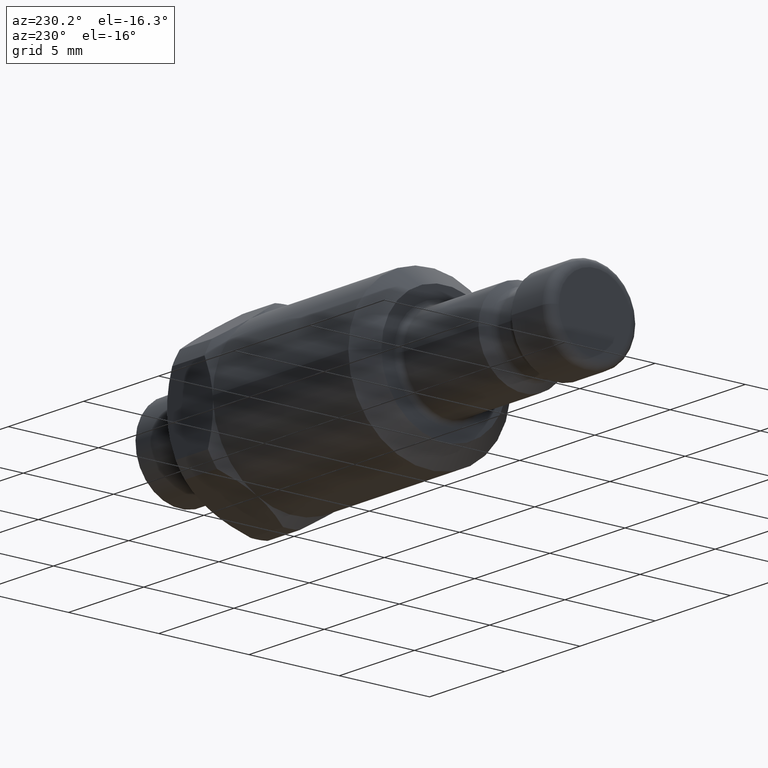
[diagram: clean part render]
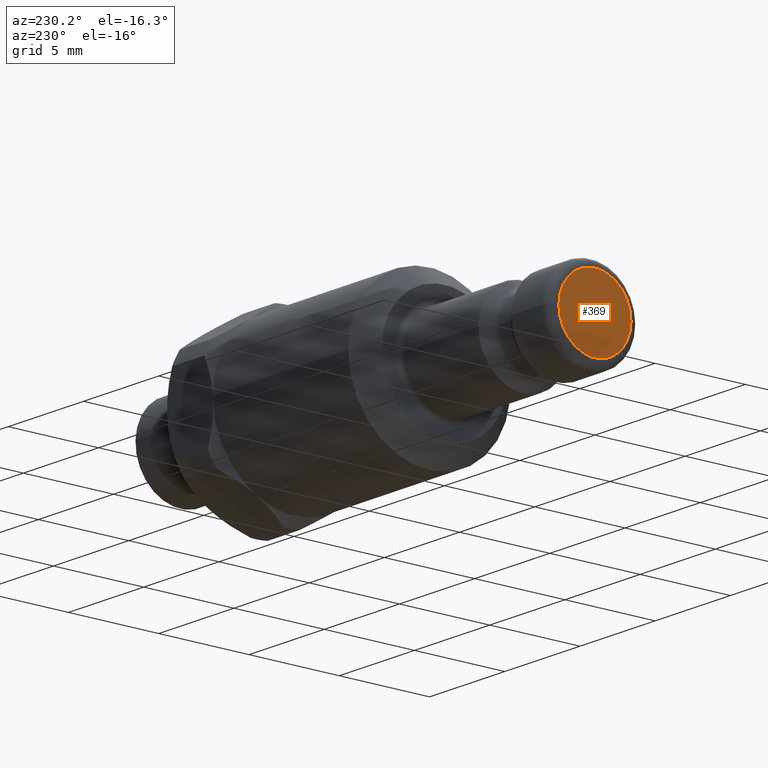
[diagram: same view with one face highlighted and labeled with its STEP entity id]
A machine part, auxiliary view. The second image highlights one B-rep face of the part: STEP entity #369.
In plain terms, the highlighted planar face has unit normal (-1, 0, 0).
Its self-contained STEP definition (entity closure, byte-faithful):
#349=CARTESIAN_POINT('',(-2.775558E-016,2.0,0.0));
#350=VERTEX_POINT('',#349);
#351=CARTESIAN_POINT('',(0.0,0.0,0.0));
#352=DIRECTION('',(1.0,0.0,0.0));
#353=DIRECTION('',(0.0,1.0,0.0));
#354=AXIS2_PLACEMENT_3D('',#351,#352,#353);
#355=CIRCLE('',#354,2.0);
#356=EDGE_CURVE('',#350,#350,#355,.T.);
#361=CARTESIAN_POINT('',(-1.387779E-016,1.675,0.0));
#362=DIRECTION('',(-1.0,0.0,0.0));
#363=DIRECTION('',(0.0,0.0,1.0));
#364=AXIS2_PLACEMENT_3D('',#361,#362,#363);
#365=PLANE('',#364);
#366=ORIENTED_EDGE('',*,*,#356,.F.);
#367=EDGE_LOOP('',(#366));
#368=FACE_OUTER_BOUND('',#367,.T.);
#369=ADVANCED_FACE('',(#368),#365,.T.);